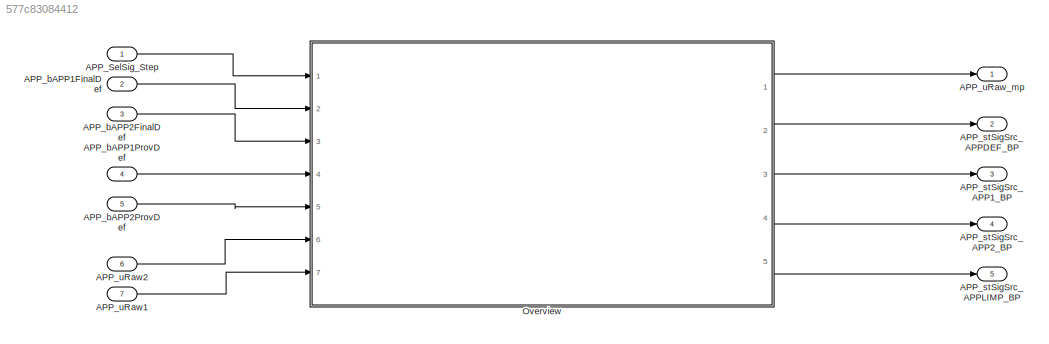
MODEL slx_577c83084412
KIND model
CONFIG AbsTol = auto
CONFIG EnableMultiTasking = off
CONFIG FixedStep = 0.001
CONFIG MaxStep = auto
CONFIG MinStep = auto
CONFIG RelTol = 1e-3
CONFIG SampleTimeConstraint = Unconstrained
CONFIG SolverName = FixedStepDiscrete
CONFIG StartTime = 0.0
CONFIG StopTime = Inf
WORKSPACE source: mxarray member
WORKSPACE APP_SelSig_DT = 10
BLOCK [Inport] APP_SelSig_Step
  OutputFunctionCall = on
BLOCK [Inport] APP_bAPP1FinalDef
  Description = Status Sensor 1 of the acceleration pedal finally defect
  OutDataTypeStr = boolean
  OutMax = 1
  OutMin = 0
  Port = 2
  PortDimensions = [1 1]
BLOCK [Inport] APP_bAPP1ProvDef
  Description = Status Sensor 1 of the acceleration pedal temporary defect
  OutDataTypeStr = boolean
  OutMax = 1
  OutMin = 0
  Port = 4
  PortDimensions = [1 1]
BLOCK [Inport] APP_bAPP2FinalDef
  Description = Status Sensor 2 of the acceleration pedal finally defect
  OutDataTypeStr = boolean
  OutMax = 1
  OutMin = 0
  Port = 3
  PortDimensions = [1 1]
BLOCK [Inport] APP_bAPP2ProvDef
  Description = Status Sensor 2 of the acceleration pedal temporary defect
  OutDataTypeStr = boolean
  OutMax = 1
  OutMin = 0
  Port = 5
  PortDimensions = [1 1]
BLOCK [Outport] APP_stSigSrc_APP1_BP
  Description = Sensor 1 is the reference variable, Sensor 2 value is defective
  OutDataTypeStr = boolean
  OutMax = 1
  OutMin = 0
  Port = 3
  PortDimensions = [1 1]
BLOCK [Outport] APP_stSigSrc_APP2_BP
  Description = Sensor 2 is the reference variable,Sensor1 value is defective
  OutDataTypeStr = boolean
  OutMax = 1
  OutMin = 0
  Port = 4
  PortDimensions = [1 1]
BLOCK [Outport] APP_stSigSrc_APPDEF_BP
  Description = both the sensors are defective. Use the default value
  OutDataTypeStr = boolean
  OutMax = 1
  OutMin = 0
  Port = 2
  PortDimensions = [1 1]
BLOCK [Outport] APP_stSigSrc_APPLIMP_BP
  Description = Substitute operation active, accelerator pedal sensor value and accelerator pedal sensor increase are limited
  OutDataTypeStr = boolean
  OutMax = 1
  OutMin = 0
  Port = 5
  PortDimensions = [1 1]
BLOCK [Inport] APP_uRaw1
  Description = Acceleration Pedal Position D
  OutDataTypeStr = Volt_mV1
  OutMax = 5000
  OutMin = 0
  Port = 7
  PortDimensions = [1 1]
  Unit = mv
BLOCK [Inport] APP_uRaw2
  Description = Acceleration Pedal Position E
  OutDataTypeStr = Volt_mV1
  OutMax = 5000
  OutMin = 0
  Port = 6
  PortDimensions = [1 1]
  Unit = mv
BLOCK [Outport] APP_uRaw_mp
  Description = Acceleration pedal position raw value
  OutDataTypeStr = Volt_mV1
  OutMax = 5000
  OutMin = 0
  PortDimensions = [1 1]
  Unit = mv
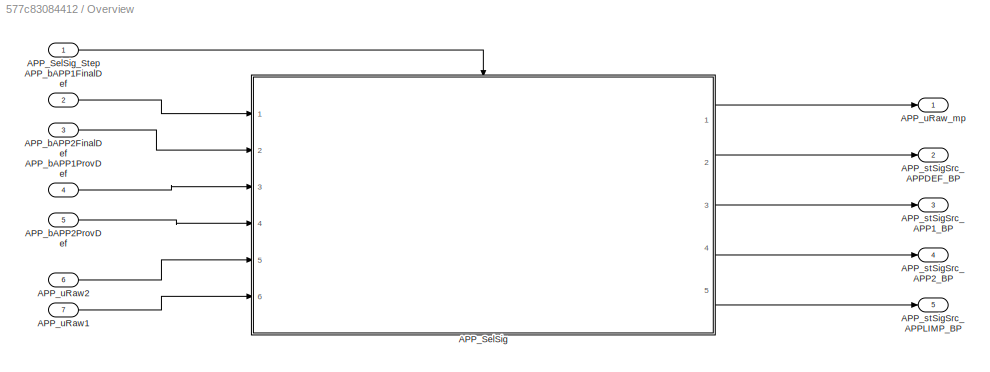
BLOCK [SubSystem] Overview
  Ports = [7, 5]
  RequestExecContextInheritance = off
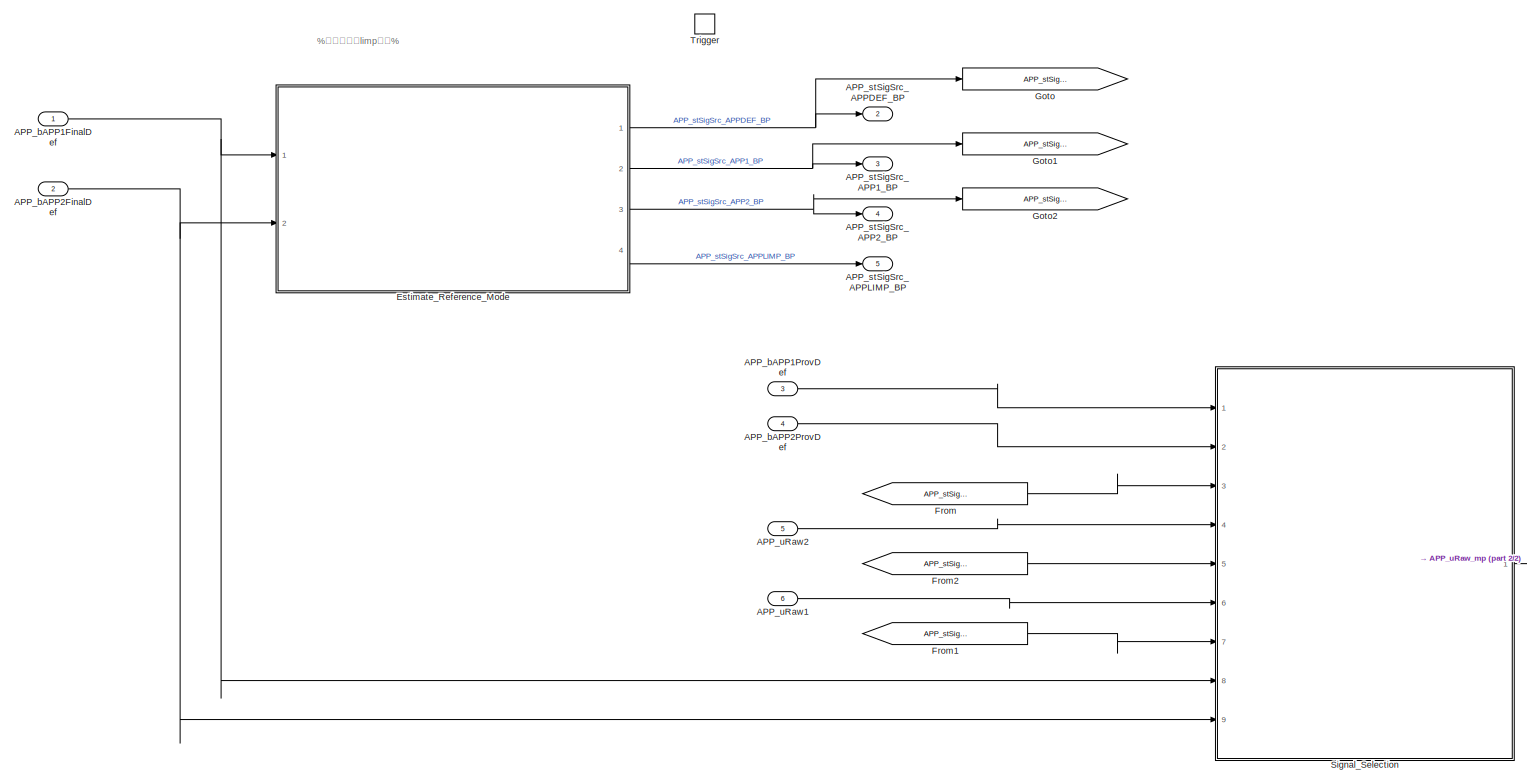
[diagram: Overview/APP_SelSig - part 1/2, most of the canvas]
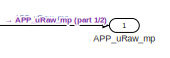
[diagram: Overview/APP_SelSig - part 2/2, bottom right region]
BLOCK [SubSystem] Overview/APP_SelSig
  Ports = [6, 5, 0, 1]
  RequestExecContextInheritance = off
BLOCK [Inport] Overview/APP_SelSig/APP_bAPP1FinalDef
BLOCK [Inport] Overview/APP_SelSig/APP_bAPP1ProvDef
  Port = 3
BLOCK [Inport] Overview/APP_SelSig/APP_bAPP2FinalDef
  Port = 2
BLOCK [Inport] Overview/APP_SelSig/APP_bAPP2ProvDef
  Port = 4
BLOCK [Outport] Overview/APP_SelSig/APP_stSigSrc_APP1_BP
  Port = 3
  VectorParamsAs1DForOutWhenUnconnected = off
BLOCK [Outport] Overview/APP_SelSig/APP_stSigSrc_APP2_BP
  Port = 4
  VectorParamsAs1DForOutWhenUnconnected = off
BLOCK [Outport] Overview/APP_SelSig/APP_stSigSrc_APPDEF_BP
  Port = 2
  VectorParamsAs1DForOutWhenUnconnected = off
BLOCK [Outport] Overview/APP_SelSig/APP_stSigSrc_APPLIMP_BP
  Port = 5
  VectorParamsAs1DForOutWhenUnconnected = off
BLOCK [Inport] Overview/APP_SelSig/APP_uRaw1
  Port = 6
  Tag = mv
BLOCK [Inport] Overview/APP_SelSig/APP_uRaw2
  Port = 5
  Tag = mv
BLOCK [Outport] Overview/APP_SelSig/APP_uRaw_mp
  Tag = mv
  VectorParamsAs1DForOutWhenUnconnected = off
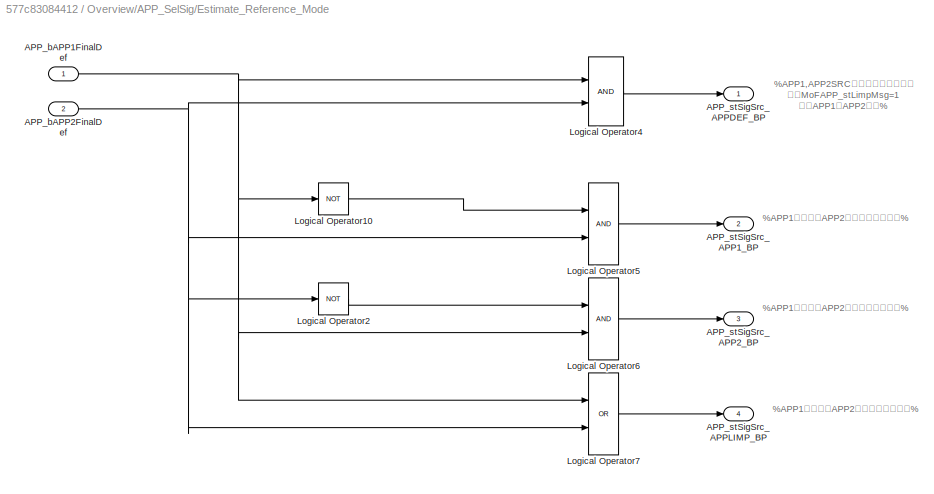
BLOCK [SubSystem] Overview/APP_SelSig/Estimate_Reference_Mode
  Ports = [2, 4]
  RequestExecContextInheritance = off
BLOCK [Inport] Overview/APP_SelSig/Estimate_Reference_Mode/APP_bAPP1FinalDef
BLOCK [Inport] Overview/APP_SelSig/Estimate_Reference_Mode/APP_bAPP2FinalDef
  Port = 2
BLOCK [Outport] Overview/APP_SelSig/Estimate_Reference_Mode/APP_stSigSrc_APP1_BP
  Port = 2
  VectorParamsAs1DForOutWhenUnconnected = off
BLOCK [Outport] Overview/APP_SelSig/Estimate_Reference_Mode/APP_stSigSrc_APP2_BP
  Port = 3
  VectorParamsAs1DForOutWhenUnconnected = off
BLOCK [Outport] Overview/APP_SelSig/Estimate_Reference_Mode/APP_stSigSrc_APPDEF_BP
  VectorParamsAs1DForOutWhenUnconnected = off
BLOCK [Outport] Overview/APP_SelSig/Estimate_Reference_Mode/APP_stSigSrc_APPLIMP_BP
  Port = 4
  VectorParamsAs1DForOutWhenUnconnected = off
BLOCK [Logic] Overview/APP_SelSig/Estimate_Reference_Mode/Logical Operator10
  AllPortsSameDT = off
  Operator = NOT
  OutDataTypeStr = boolean
  Ports = [1, 1]
BLOCK [Logic] Overview/APP_SelSig/Estimate_Reference_Mode/Logical Operator2
  AllPortsSameDT = off
  Operator = NOT
  OutDataTypeStr = boolean
  Ports = [1, 1]
BLOCK [Logic] Overview/APP_SelSig/Estimate_Reference_Mode/Logical Operator4
  OutDataTypeStr = boolean
  Ports = [2, 1]
BLOCK [Logic] Overview/APP_SelSig/Estimate_Reference_Mode/Logical Operator5
  OutDataTypeStr = boolean
  Ports = [2, 1]
BLOCK [Logic] Overview/APP_SelSig/Estimate_Reference_Mode/Logical Operator6
  OutDataTypeStr = boolean
  Ports = [2, 1]
BLOCK [Logic] Overview/APP_SelSig/Estimate_Reference_Mode/Logical Operator7
  Operator = OR
  OutDataTypeStr = boolean
  Ports = [2, 1]
BLOCK [From] Overview/APP_SelSig/From
  GotoTag = APP_stSigSrc_APPDEF
BLOCK [From] Overview/APP_SelSig/From1
  GotoTag = APP_stSigSrc_APP1
BLOCK [From] Overview/APP_SelSig/From2
  GotoTag = APP_stSigSrc_APP2
BLOCK [Goto] Overview/APP_SelSig/Goto
  GotoTag = APP_stSigSrc_APPDEF
BLOCK [Goto] Overview/APP_SelSig/Goto1
  GotoTag = APP_stSigSrc_APP1
BLOCK [Goto] Overview/APP_SelSig/Goto2
  GotoTag = APP_stSigSrc_APP2
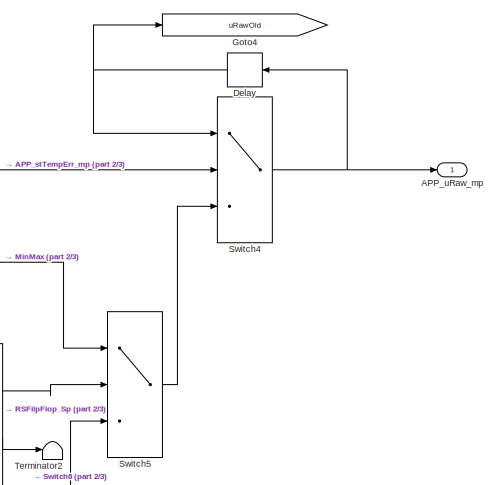
[diagram: Overview/APP_SelSig/Signal_Selection - part 1/3, top right region]
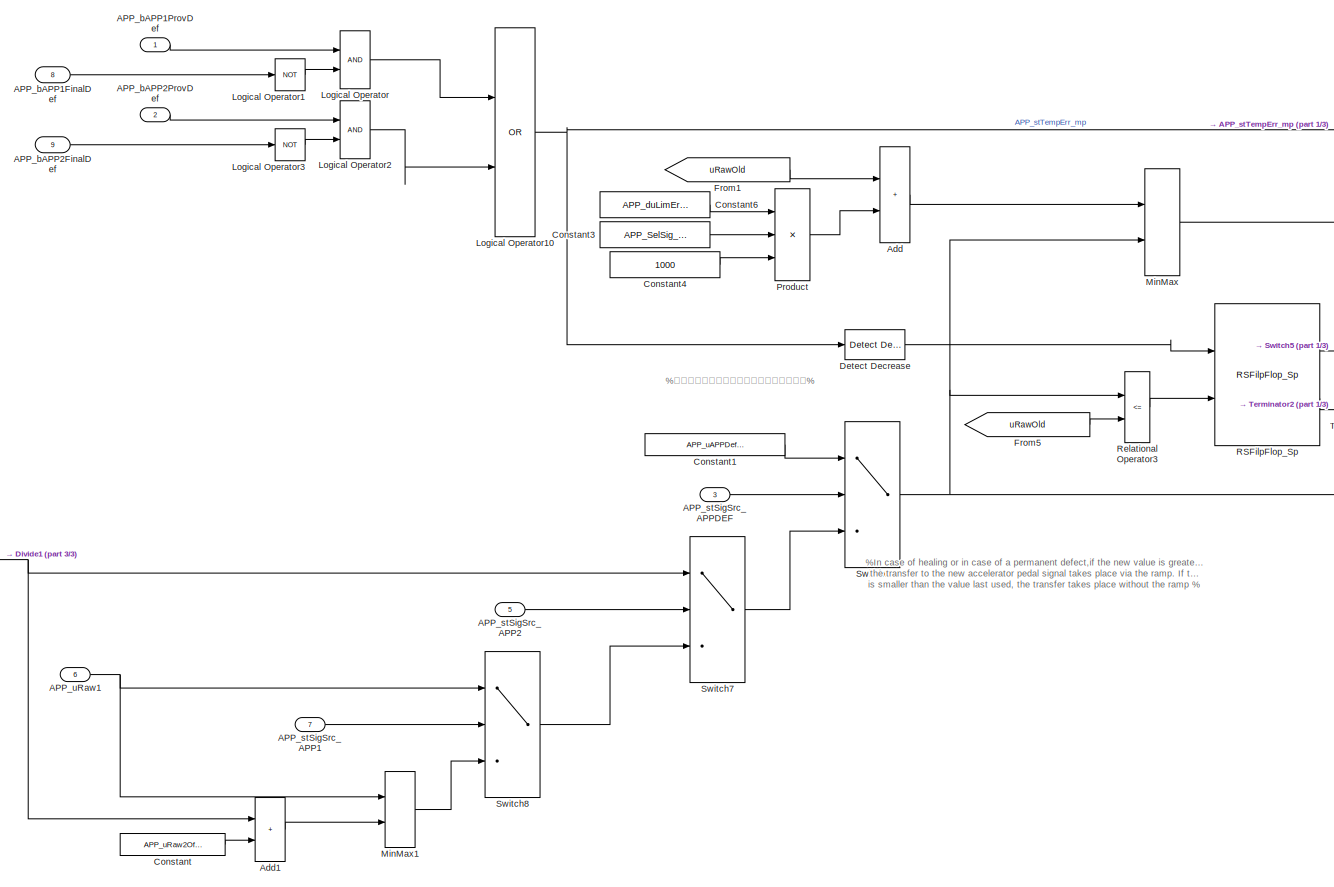
[diagram: Overview/APP_SelSig/Signal_Selection - part 2/3, center side, full height]
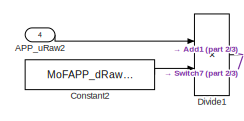
[diagram: Overview/APP_SelSig/Signal_Selection - part 3/3, middle left region]
BLOCK [SubSystem] Overview/APP_SelSig/Signal_Selection
  Ports = [9, 1]
  RequestExecContextInheritance = off
BLOCK [Inport] Overview/APP_SelSig/Signal_Selection/APP_bAPP1FinalDef
  Port = 8
BLOCK [Inport] Overview/APP_SelSig/Signal_Selection/APP_bAPP1ProvDef
  Tag = -
BLOCK [Inport] Overview/APP_SelSig/Signal_Selection/APP_bAPP2FinalDef
  Port = 9
BLOCK [Inport] Overview/APP_SelSig/Signal_Selection/APP_bAPP2ProvDef
  Port = 2
  Tag = -
BLOCK [Inport] Overview/APP_SelSig/Signal_Selection/APP_stSigSrc_APP1
  Port = 7
BLOCK [Inport] Overview/APP_SelSig/Signal_Selection/APP_stSigSrc_APP2
  Port = 5
BLOCK [Inport] Overview/APP_SelSig/Signal_Selection/APP_stSigSrc_APPDEF
  Port = 3
BLOCK [Inport] Overview/APP_SelSig/Signal_Selection/APP_uRaw1
  Port = 6
  Tag = mv
BLOCK [Inport] Overview/APP_SelSig/Signal_Selection/APP_uRaw2
  Port = 4
  Tag = mv
BLOCK [Outport] Overview/APP_SelSig/Signal_Selection/APP_uRaw_mp
  Tag = mv
  VectorParamsAs1DForOutWhenUnconnected = off
BLOCK [Sum] Overview/APP_SelSig/Signal_Selection/Add
  IconShape = rectangular
  InputSameDT = on
  Ports = [2, 1]
BLOCK [Sum] Overview/APP_SelSig/Signal_Selection/Add1
  IconShape = rectangular
  InputSameDT = on
  Ports = [2, 1]
BLOCK [Constant] Overview/APP_SelSig/Signal_Selection/Constant
  Value = APP_uRaw2Offset_C
BLOCK [Constant] Overview/APP_SelSig/Signal_Selection/Constant1
  Value = APP_uAPPDef_C
BLOCK [Constant] Overview/APP_SelSig/Signal_Selection/Constant2
  SampleTime = -1
  Value = MoFAPP_dRawSigFac_C
BLOCK [Constant] Overview/APP_SelSig/Signal_Selection/Constant3
  OutDataTypeStr = Inherit: Inherit via back propagation
  Value = APP_SelSig_DT
BLOCK [Constant] Overview/APP_SelSig/Signal_Selection/Constant4
  OutDataTypeStr = int16
  Value = 1000
BLOCK [Constant] Overview/APP_SelSig/Signal_Selection/Constant6
  Value = APP_duLimErrPos_C
BLOCK [Delay] Overview/APP_SelSig/Signal_Selection/Delay
  DelayLength = 1
  InitialCondition = 0
  InputPortMap = u0
  Ports = [1, 1]
BLOCK [Reference] Overview/APP_SelSig/Signal_Selection/Detect Decrease  REF=simulink/Logic and Bit
Operations/Detect
Decrease
  Ports = [1, 1]
  SourceBlock = simulink/Logic and Bit\nOperations/Detect\nDecrease
  SourceProductBaseCode = SL
  SourceType = Detect Decrease
BLOCK [Product] Overview/APP_SelSig/Signal_Selection/Divide1
  Inputs = **
  OutDataTypeStr = Inherit: Inherit via back propagation
  Ports = [2, 1]
BLOCK [From] Overview/APP_SelSig/Signal_Selection/From1
  GotoTag = uRawOld
BLOCK [From] Overview/APP_SelSig/Signal_Selection/From5
  GotoTag = uRawOld
BLOCK [Goto] Overview/APP_SelSig/Signal_Selection/Goto4
  GotoTag = uRawOld
BLOCK [Logic] Overview/APP_SelSig/Signal_Selection/Logical Operator
  OutDataTypeStr = boolean
  Ports = [2, 1]
BLOCK [Logic] Overview/APP_SelSig/Signal_Selection/Logical Operator1
  AllPortsSameDT = off
  Operator = NOT
  OutDataTypeStr = boolean
  Ports = [1, 1]
BLOCK [Logic] Overview/APP_SelSig/Signal_Selection/Logical Operator10
  Operator = OR
  OutDataTypeStr = boolean
  Ports = [2, 1]
BLOCK [Logic] Overview/APP_SelSig/Signal_Selection/Logical Operator2
  OutDataTypeStr = boolean
  Ports = [2, 1]
BLOCK [Logic] Overview/APP_SelSig/Signal_Selection/Logical Operator3
  AllPortsSameDT = off
  Operator = NOT
  OutDataTypeStr = boolean
  Ports = [1, 1]
BLOCK [MinMax] Overview/APP_SelSig/Signal_Selection/MinMax
  Inputs = 2
  Ports = [2, 1]
BLOCK [MinMax] Overview/APP_SelSig/Signal_Selection/MinMax1
  InputSameDT = on
  Inputs = 2
  Ports = [2, 1]
BLOCK [Product] Overview/APP_SelSig/Signal_Selection/Product
  Inputs = **/
  OutDataTypeStr = Inherit: Inherit via back propagation
  Ports = [3, 1]
BLOCK [Reference] Overview/APP_SelSig/Signal_Selection/RSFilpFlop_Sp  REF=sllib/Logical symbols/RSFilpFlop_Sp  (lib defined in slx_2b0aa6d284ff)
  AttributesFormatString = State Initial=%<InitialCondition>
  Ports = [2, 2]
  SourceBlock = sllib/Logical symbols/RSFilpFlop_Sp
  SourceProductName = sllib
  SourceType = RSFlipFlop_Sp
BLOCK [RelationalOperator] Overview/APP_SelSig/Signal_Selection/Relational Operator3
  Operator = <=
  OutDataTypeStr = boolean
  Ports = [2, 1]
BLOCK [Switch] Overview/APP_SelSig/Signal_Selection/Switch4
  Criteria = u2 ~= 0
  SaturateOnIntegerOverflow = off
BLOCK [Switch] Overview/APP_SelSig/Signal_Selection/Switch5
  Criteria = u2 ~= 0
  SaturateOnIntegerOverflow = off
BLOCK [Switch] Overview/APP_SelSig/Signal_Selection/Switch6
  Criteria = u2 ~= 0
  SaturateOnIntegerOverflow = off
BLOCK [Switch] Overview/APP_SelSig/Signal_Selection/Switch7
  Criteria = u2 ~= 0
  SaturateOnIntegerOverflow = off
BLOCK [Switch] Overview/APP_SelSig/Signal_Selection/Switch8
  Criteria = u2 ~= 0
  SaturateOnIntegerOverflow = off
BLOCK [Terminator] Overview/APP_SelSig/Signal_Selection/Terminator2
BLOCK [TriggerPort] Overview/APP_SelSig/Trigger
  PortDimensions = 1
  Ports = []
  StatesWhenEnabling = held
  TriggerType = function-call
  VariantControl = Variant
BLOCK [Inport] Overview/APP_SelSig_Step
BLOCK [Inport] Overview/APP_bAPP1FinalDef
  Port = 2
BLOCK [Inport] Overview/APP_bAPP1ProvDef
  Port = 4
BLOCK [Inport] Overview/APP_bAPP2FinalDef
  Port = 3
BLOCK [Inport] Overview/APP_bAPP2ProvDef
  Port = 5
BLOCK [Outport] Overview/APP_stSigSrc_APP1_BP
  Port = 3
  VectorParamsAs1DForOutWhenUnconnected = off
BLOCK [Outport] Overview/APP_stSigSrc_APP2_BP
  Port = 4
  VectorParamsAs1DForOutWhenUnconnected = off
BLOCK [Outport] Overview/APP_stSigSrc_APPDEF_BP
  Port = 2
  VectorParamsAs1DForOutWhenUnconnected = off
BLOCK [Outport] Overview/APP_stSigSrc_APPLIMP_BP
  Port = 5
  VectorParamsAs1DForOutWhenUnconnected = off
BLOCK [Inport] Overview/APP_uRaw1
  Port = 7
BLOCK [Inport] Overview/APP_uRaw2
  Port = 6
BLOCK [Outport] Overview/APP_uRaw_mp
  VectorParamsAs1DForOutWhenUnconnected = off
ANNOTATION Overview/APP_SelSig: %信号选择与limp模式%
ANNOTATION Overview/APP_SelSig/Estimate_Reference_Mode: %APP1,APP2SRC高故障且校验故障， 或者MoFAPP_stLimpMsg=1 或者APP1，APP2故障%
ANNOTATION Overview/APP_SelSig/Estimate_Reference_Mode: %APP1故障，且APP2正常，且校验正常%
ANNOTATION Overview/APP_SelSig/Estimate_Reference_Mode: %APP1故障，或APP2故障，或同步故障%
ANNOTATION Overview/APP_SelSig/Estimate_Reference_Mode: %APP1正常，且APP2故障，且校验正常%
ANNOTATION Overview/APP_SelSig/Signal_Selection: %下降沿表示没有去抖时，才能使用斜坡功能%
ANNOTATION Overview/APP_SelSig/Signal_Selection: %In case of healing or in case of a permanent defect,if the new value is greater the last used value, the transfer to the new accelerator pedal signal takes place via the ramp. If the new default value is smaller than the value last used, the transfer takes place without the ramp %
LINE APP_SelSig_Step:1 -> Overview:1
LINE APP_bAPP1FinalDef:1 -> Overview:2
LINE APP_bAPP1ProvDef:1 -> Overview:4
LINE APP_bAPP2FinalDef:1 -> Overview:3
LINE APP_bAPP2ProvDef:1 -> Overview:5
LINE APP_uRaw1:1 -> Overview:7
LINE APP_uRaw2:1 -> Overview:6
NET Overview/APP_SelSig/APP_bAPP1FinalDef:1 -> Overview/APP_SelSig/Estimate_Reference_Mode:1, Overview/APP_SelSig/Signal_Selection:8
LINE Overview/APP_SelSig/APP_bAPP1ProvDef:1 -> Overview/APP_SelSig/Signal_Selection:1
NET Overview/APP_SelSig/APP_bAPP2FinalDef:1 -> Overview/APP_SelSig/Estimate_Reference_Mode:2, Overview/APP_SelSig/Signal_Selection:9
LINE Overview/APP_SelSig/APP_bAPP2ProvDef:1 -> Overview/APP_SelSig/Signal_Selection:2
LINE Overview/APP_SelSig/APP_uRaw1:1 -> Overview/APP_SelSig/Signal_Selection:6
LINE Overview/APP_SelSig/APP_uRaw2:1 -> Overview/APP_SelSig/Signal_Selection:4
NET Overview/APP_SelSig/Estimate_Reference_Mode/APP_bAPP1FinalDef:1 -> Overview/APP_SelSig/Estimate_Reference_Mode/Logical Operator10:1, Overview/APP_SelSig/Estimate_Reference_Mode/Logical Operator4:1, Overview/APP_SelSig/Estimate_Reference_Mode/Logical Operator6:2, Overview/APP_SelSig/Estimate_Reference_Mode/Logical Operator7:1
NET Overview/APP_SelSig/Estimate_Reference_Mode/APP_bAPP2FinalDef:1 -> Overview/APP_SelSig/Estimate_Reference_Mode/Logical Operator2:1, Overview/APP_SelSig/Estimate_Reference_Mode/Logical Operator4:2, Overview/APP_SelSig/Estimate_Reference_Mode/Logical Operator5:2, Overview/APP_SelSig/Estimate_Reference_Mode/Logical Operator7:2
LINE Overview/APP_SelSig/Estimate_Reference_Mode/Logical Operator10:1 -> Overview/APP_SelSig/Estimate_Reference_Mode/Logical Operator5:1
LINE Overview/APP_SelSig/Estimate_Reference_Mode/Logical Operator2:1 -> Overview/APP_SelSig/Estimate_Reference_Mode/Logical Operator6:1
LINE Overview/APP_SelSig/Estimate_Reference_Mode/Logical Operator4:1 -> Overview/APP_SelSig/Estimate_Reference_Mode/APP_stSigSrc_APPDEF_BP:1
LINE Overview/APP_SelSig/Estimate_Reference_Mode/Logical Operator5:1 -> Overview/APP_SelSig/Estimate_Reference_Mode/APP_stSigSrc_APP1_BP:1
LINE Overview/APP_SelSig/Estimate_Reference_Mode/Logical Operator6:1 -> Overview/APP_SelSig/Estimate_Reference_Mode/APP_stSigSrc_APP2_BP:1
LINE Overview/APP_SelSig/Estimate_Reference_Mode/Logical Operator7:1 -> Overview/APP_SelSig/Estimate_Reference_Mode/APP_stSigSrc_APPLIMP_BP:1
NET Overview/APP_SelSig/Estimate_Reference_Mode:1 -> Overview/APP_SelSig/APP_stSigSrc_APPDEF_BP:1, Overview/APP_SelSig/Goto:1
NET Overview/APP_SelSig/Estimate_Reference_Mode:2 -> Overview/APP_SelSig/APP_stSigSrc_APP1_BP:1, Overview/APP_SelSig/Goto1:1
NET Overview/APP_SelSig/Estimate_Reference_Mode:3 -> Overview/APP_SelSig/APP_stSigSrc_APP2_BP:1, Overview/APP_SelSig/Goto2:1
LINE Overview/APP_SelSig/Estimate_Reference_Mode:4 -> Overview/APP_SelSig/APP_stSigSrc_APPLIMP_BP:1
LINE Overview/APP_SelSig/From1:1 -> Overview/APP_SelSig/Signal_Selection:7
LINE Overview/APP_SelSig/From2:1 -> Overview/APP_SelSig/Signal_Selection:5
LINE Overview/APP_SelSig/From:1 -> Overview/APP_SelSig/Signal_Selection:3
LINE Overview/APP_SelSig/Signal_Selection/APP_bAPP1FinalDef:1 -> Overview/APP_SelSig/Signal_Selection/Logical Operator1:1
LINE Overview/APP_SelSig/Signal_Selection/APP_bAPP1ProvDef:1 -> Overview/APP_SelSig/Signal_Selection/Logical Operator:1
LINE Overview/APP_SelSig/Signal_Selection/APP_bAPP2FinalDef:1 -> Overview/APP_SelSig/Signal_Selection/Logical Operator3:1
LINE Overview/APP_SelSig/Signal_Selection/APP_bAPP2ProvDef:1 -> Overview/APP_SelSig/Signal_Selection/Logical Operator2:1
LINE Overview/APP_SelSig/Signal_Selection/APP_stSigSrc_APP1:1 -> Overview/APP_SelSig/Signal_Selection/Switch8:2
LINE Overview/APP_SelSig/Signal_Selection/APP_stSigSrc_APP2:1 -> Overview/APP_SelSig/Signal_Selection/Switch7:2
LINE Overview/APP_SelSig/Signal_Selection/APP_stSigSrc_APPDEF:1 -> Overview/APP_SelSig/Signal_Selection/Switch6:2
NET Overview/APP_SelSig/Signal_Selection/APP_uRaw1:1 -> Overview/APP_SelSig/Signal_Selection/MinMax1:1, Overview/APP_SelSig/Signal_Selection/Switch8:1
LINE Overview/APP_SelSig/Signal_Selection/APP_uRaw2:1 -> Overview/APP_SelSig/Signal_Selection/Divide1:1
LINE Overview/APP_SelSig/Signal_Selection/Add1:1 -> Overview/APP_SelSig/Signal_Selection/MinMax1:2
LINE Overview/APP_SelSig/Signal_Selection/Add:1 -> Overview/APP_SelSig/Signal_Selection/MinMax:1
LINE Overview/APP_SelSig/Signal_Selection/Constant1:1 -> Overview/APP_SelSig/Signal_Selection/Switch6:1
LINE Overview/APP_SelSig/Signal_Selection/Constant2:1 -> Overview/APP_SelSig/Signal_Selection/Divide1:2
LINE Overview/APP_SelSig/Signal_Selection/Constant3:1 -> Overview/APP_SelSig/Signal_Selection/Product:2
LINE Overview/APP_SelSig/Signal_Selection/Constant4:1 -> Overview/APP_SelSig/Signal_Selection/Product:3
LINE Overview/APP_SelSig/Signal_Selection/Constant6:1 -> Overview/APP_SelSig/Signal_Selection/Product:1
LINE Overview/APP_SelSig/Signal_Selection/Constant:1 -> Overview/APP_SelSig/Signal_Selection/Add1:2
NET Overview/APP_SelSig/Signal_Selection/Delay:1 -> Overview/APP_SelSig/Signal_Selection/Goto4:1, Overview/APP_SelSig/Signal_Selection/Switch4:1
LINE Overview/APP_SelSig/Signal_Selection/Detect Decrease:1 -> Overview/APP_SelSig/Signal_Selection/RSFilpFlop_Sp:1
NET Overview/APP_SelSig/Signal_Selection/Divide1:1 -> Overview/APP_SelSig/Signal_Selection/Add1:1, Overview/APP_SelSig/Signal_Selection/Switch7:1
LINE Overview/APP_SelSig/Signal_Selection/From1:1 -> Overview/APP_SelSig/Signal_Selection/Add:1
LINE Overview/APP_SelSig/Signal_Selection/From5:1 -> Overview/APP_SelSig/Signal_Selection/Relational Operator3:2
NET Overview/APP_SelSig/Signal_Selection/Logical Operator10:1 -> Overview/APP_SelSig/Signal_Selection/Detect Decrease:1, Overview/APP_SelSig/Signal_Selection/Switch4:2
LINE Overview/APP_SelSig/Signal_Selection/Logical Operator1:1 -> Overview/APP_SelSig/Signal_Selection/Logical Operator:2
LINE Overview/APP_SelSig/Signal_Selection/Logical Operator2:1 -> Overview/APP_SelSig/Signal_Selection/Logical Operator10:2
LINE Overview/APP_SelSig/Signal_Selection/Logical Operator3:1 -> Overview/APP_SelSig/Signal_Selection/Logical Operator2:2
LINE Overview/APP_SelSig/Signal_Selection/Logical Operator:1 -> Overview/APP_SelSig/Signal_Selection/Logical Operator10:1
LINE Overview/APP_SelSig/Signal_Selection/MinMax1:1 -> Overview/APP_SelSig/Signal_Selection/Switch8:3
LINE Overview/APP_SelSig/Signal_Selection/MinMax:1 -> Overview/APP_SelSig/Signal_Selection/Switch5:1
LINE Overview/APP_SelSig/Signal_Selection/Product:1 -> Overview/APP_SelSig/Signal_Selection/Add:2
LINE Overview/APP_SelSig/Signal_Selection/RSFilpFlop_Sp:1 -> Overview/APP_SelSig/Signal_Selection/Switch5:2
LINE Overview/APP_SelSig/Signal_Selection/RSFilpFlop_Sp:2 -> Overview/APP_SelSig/Signal_Selection/Terminator2:1
LINE Overview/APP_SelSig/Signal_Selection/Relational Operator3:1 -> Overview/APP_SelSig/Signal_Selection/RSFilpFlop_Sp:2
NET Overview/APP_SelSig/Signal_Selection/Switch4:1 -> Overview/APP_SelSig/Signal_Selection/APP_uRaw_mp:1, Overview/APP_SelSig/Signal_Selection/Delay:1
LINE Overview/APP_SelSig/Signal_Selection/Switch5:1 -> Overview/APP_SelSig/Signal_Selection/Switch4:3
NET Overview/APP_SelSig/Signal_Selection/Switch6:1 -> Overview/APP_SelSig/Signal_Selection/MinMax:2, Overview/APP_SelSig/Signal_Selection/Relational Operator3:1, Overview/APP_SelSig/Signal_Selection/Switch5:3
LINE Overview/APP_SelSig/Signal_Selection/Switch7:1 -> Overview/APP_SelSig/Signal_Selection/Switch6:3
LINE Overview/APP_SelSig/Signal_Selection/Switch8:1 -> Overview/APP_SelSig/Signal_Selection/Switch7:3
LINE Overview/APP_SelSig/Signal_Selection:1 -> Overview/APP_SelSig/APP_uRaw_mp:1
LINE Overview/APP_SelSig:1 -> Overview/APP_uRaw_mp:1
LINE Overview/APP_SelSig:2 -> Overview/APP_stSigSrc_APPDEF_BP:1
LINE Overview/APP_SelSig:3 -> Overview/APP_stSigSrc_APP1_BP:1
LINE Overview/APP_SelSig:4 -> Overview/APP_stSigSrc_APP2_BP:1
LINE Overview/APP_SelSig:5 -> Overview/APP_stSigSrc_APPLIMP_BP:1
LINE Overview/APP_SelSig_Step:1 -> Overview/APP_SelSig:trigger
LINE Overview/APP_bAPP1FinalDef:1 -> Overview/APP_SelSig:1
LINE Overview/APP_bAPP1ProvDef:1 -> Overview/APP_SelSig:3
LINE Overview/APP_bAPP2FinalDef:1 -> Overview/APP_SelSig:2
LINE Overview/APP_bAPP2ProvDef:1 -> Overview/APP_SelSig:4
LINE Overview/APP_uRaw1:1 -> Overview/APP_SelSig:6
LINE Overview/APP_uRaw2:1 -> Overview/APP_SelSig:5
LINE Overview:1 -> APP_uRaw_mp:1
LINE Overview:2 -> APP_stSigSrc_APPDEF_BP:1
LINE Overview:3 -> APP_stSigSrc_APP1_BP:1
LINE Overview:4 -> APP_stSigSrc_APP2_BP:1
LINE Overview:5 -> APP_stSigSrc_APPLIMP_BP:1
note: NET lines group one-source signal fan-out (src -> all destinations, sorted); 1:1 wires keep LINE
